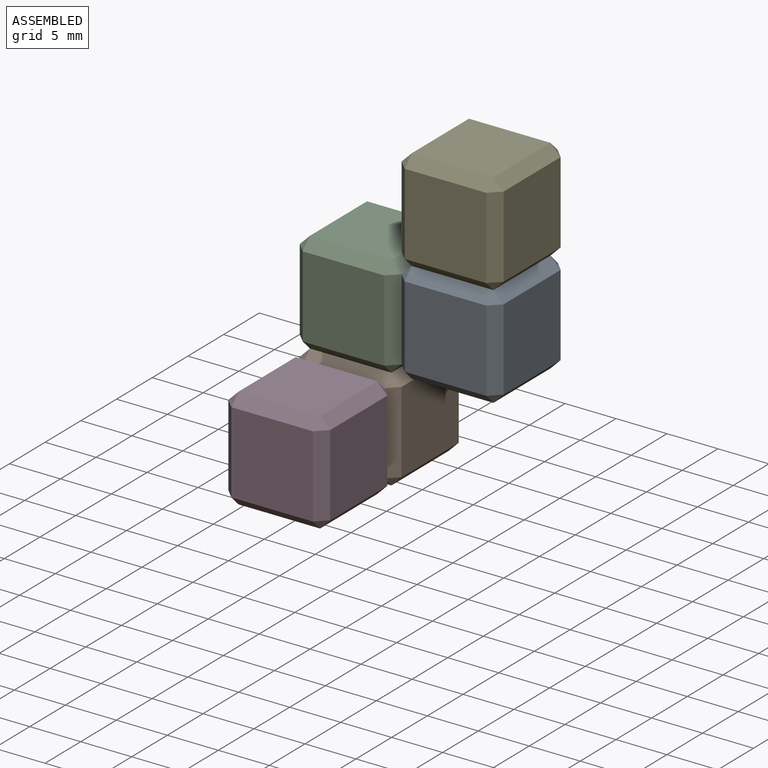
[diagram: assembled view]
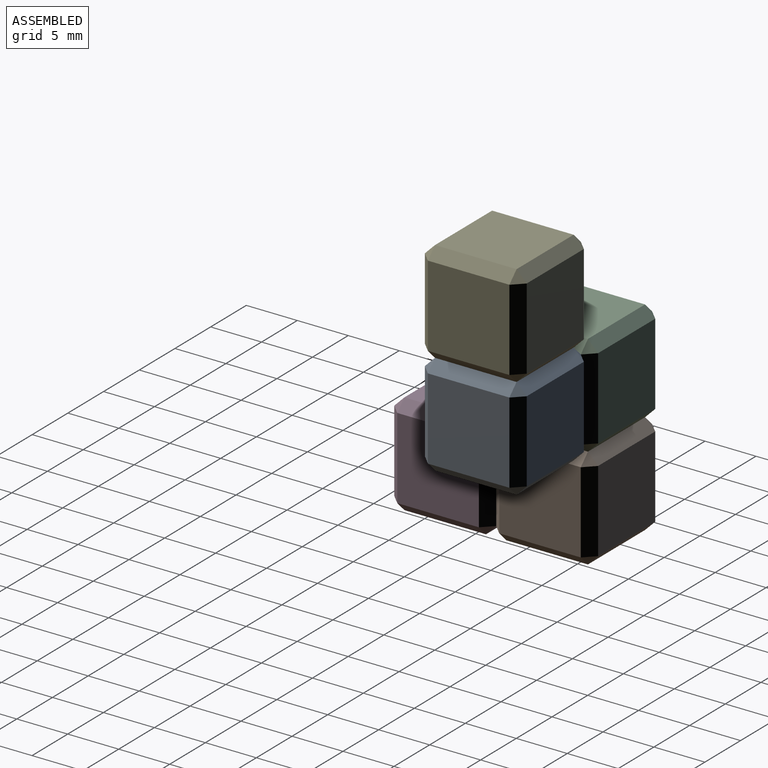
[diagram: assembled view, second angle]
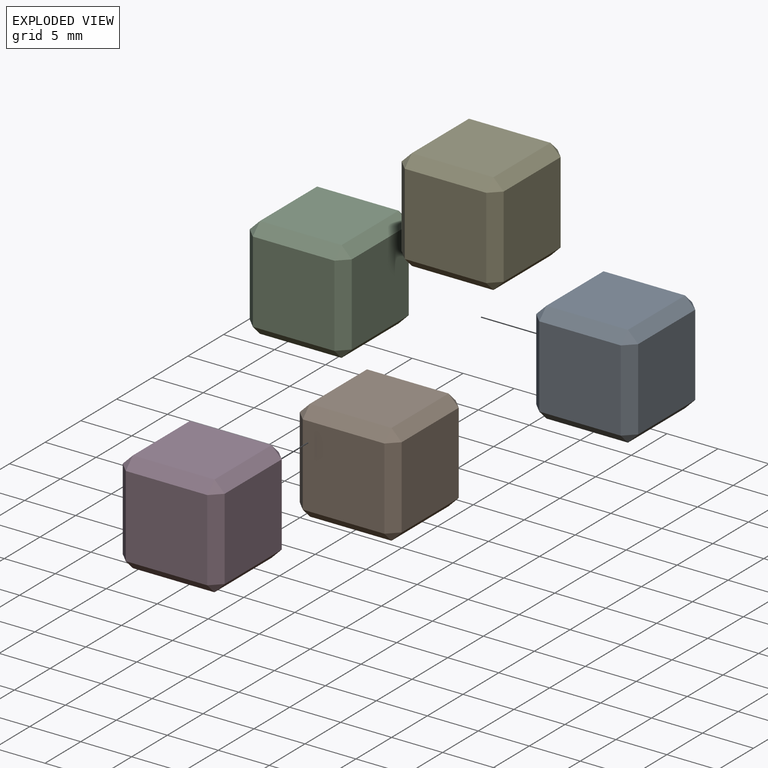
[diagram: exploded view]
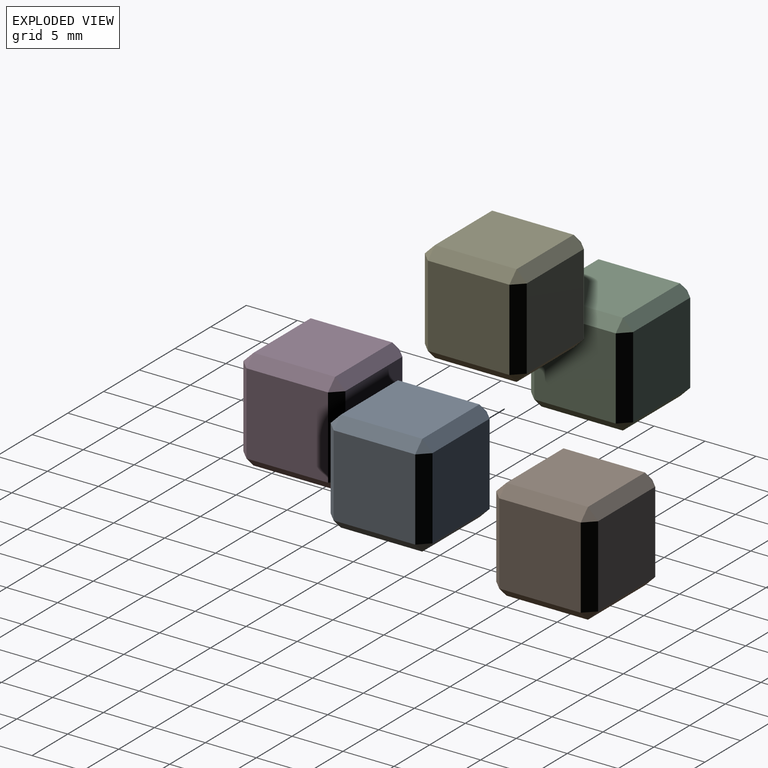
[diagram: exploded view, second angle]
ASSEMBLY  parts=5 mates=4
PART A: 26 faces, bbox 10x10x10 mm
  f0: plane 8x8mm, normal (0,0,-1), area 64mm2, adj f12,f13,f21,f22
  f1: plane 8x8mm, normal (1,0,0), area 64mm2, adj f6,f10,f11,f12
  f2: plane 8x8mm, normal (0,0,1), area 64mm2, adj f9,f10,f19,f20
  f3: plane 8x8mm, normal (-1,0,0), area 64mm2, adj f14,f19,f22,f25
  f4: plane 8x8mm, normal (0,-1,0), area 64mm2, adj f11,f20,f21,f25
  f5: plane 8x8mm, normal (0,1,0), area 64mm2, adj f6,f9,f13,f14
  f6: plane 8x1mm, normal (0.71,0.71,0), area 11.3mm2, adj f1,f5,f7,f8
  f7: plane 1x1mm, normal (0.58,0.58,0.58), area 0.9mm2, adj f6,f9,f10
  f8: plane 1x1mm, normal (0.58,0.58,-0.58), area 0.9mm2, adj f6,f12,f13
  f9: plane 8x1mm, normal (0,0.71,0.71), area 11.3mm2, adj f2,f5,f7,f15
  f10: plane 8x1mm, normal (0.71,0,0.71), area 11.3mm2, adj f1,f2,f7,f16
  f11: plane 8x1mm, normal (0.71,-0.71,0), area 11.3mm2, adj f1,f4,f16,f17
  f12: plane 8x1mm, normal (0.71,0,-0.71), area 11.3mm2, adj f0,f1,f8,f17
  f13: plane 8x1mm, normal (0,0.71,-0.71), area 11.3mm2, adj f0,f5,f8,f18
  f14: plane 8x1mm, normal (-0.71,0.71,0), area 11.3mm2, adj f3,f5,f15,f18
  f15: plane 1x1mm, normal (-0.58,0.58,0.58), area 0.9mm2, adj f9,f14,f19
  f16: plane 1x1mm, normal (0.58,-0.58,0.58), area 0.9mm2, adj f10,f11,f20
  f17: plane 1x1mm, normal (0.58,-0.58,-0.58), area 0.9mm2, adj f11,f12,f21
  f18: plane 1x1mm, normal (-0.58,0.58,-0.58), area 0.9mm2, adj f13,f14,f22
  f19: plane 8x1mm, normal (-0.71,0,0.71), area 11.3mm2, adj f2,f3,f15,f23
  f20: plane 8x1mm, normal (0,-0.71,0.71), area 11.3mm2, adj f2,f4,f16,f23
  f21: plane 8x1mm, normal (0,-0.71,-0.71), area 11.3mm2, adj f0,f4,f17,f24
  f22: plane 8x1mm, normal (-0.71,0,-0.71), area 11.3mm2, adj f0,f3,f18,f24
  f23: plane 1x1mm, normal (-0.58,-0.58,0.58), area 0.9mm2, adj f19,f20,f25
  f24: plane 1x1mm, normal (-0.58,-0.58,-0.58), area 0.9mm2, adj f21,f22,f25
  f25: plane 8x1mm, normal (-0.71,-0.71,0), area 11.3mm2, adj f3,f4,f23,f24
PART B: same geometry as A
PART C: same geometry as A
PART D: same geometry as A
PART E: same geometry as A
PLACE A t=(-14.7,-6.46,0.16)mm
PLACE B t=(-24.7,-6.46,-9.84)mm
PLACE C t=(-24.7,-6.46,0.16)mm
PLACE D t=(-24.7,-16.46,-9.84)mm
PLACE E t=(-14.7,-6.46,10.16)mm
MATE fastened B.f2 <-> C.f0  axis (0,0,1) through (-24.7,-6.46,-6.53)mm
MATE fastened C.f1 <-> A.f3  axis (1,0,0) through (-19.7,-6.46,-1.53)mm
MATE fastened D.f5 <-> B.f4  axis (0,1,0) through (-24.7,-11.46,-11.53)mm
MATE fastened A.f2 <-> E.f0  axis (0,0,1) through (-14.7,-6.46,3.47)mm
